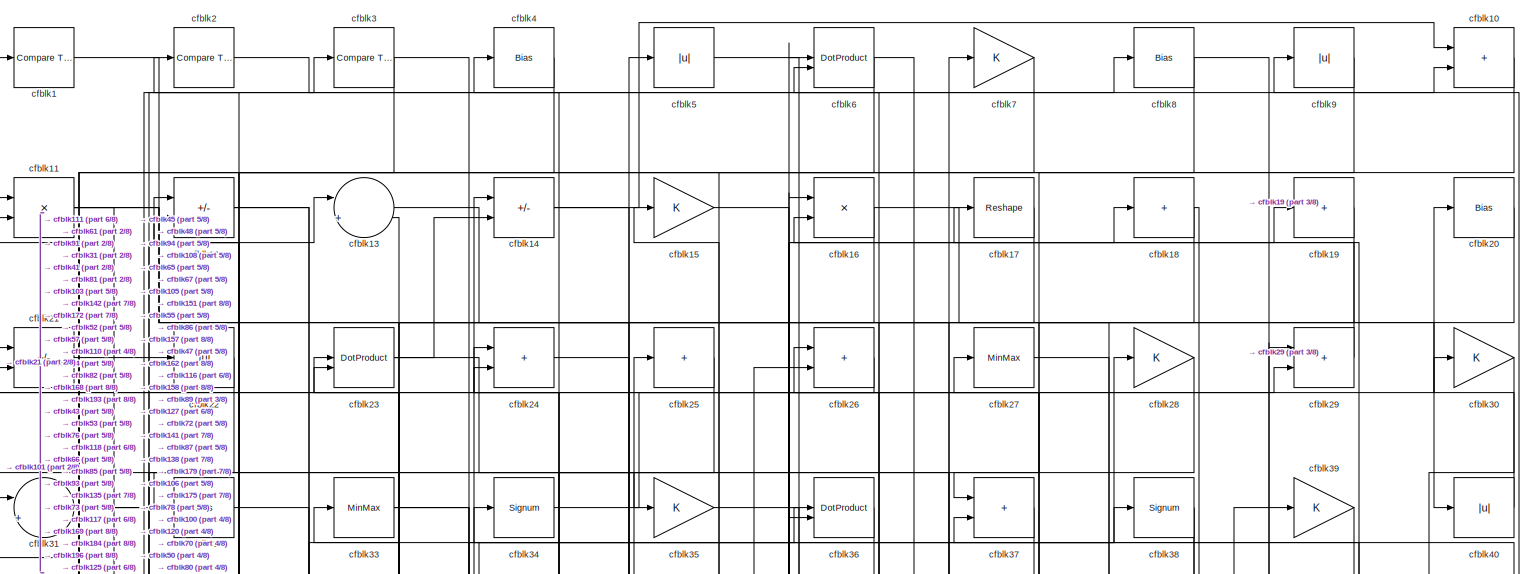
[diagram: root canvas - part 1/8, full width, top band]
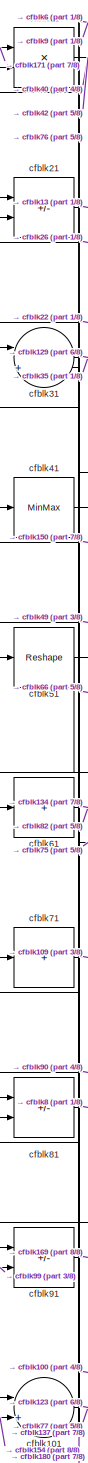
[diagram: root canvas - part 2/8, top left region]
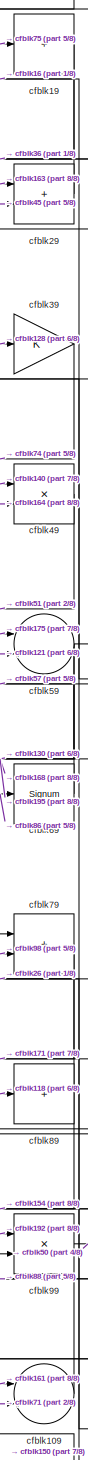
[diagram: root canvas - part 3/8, top right region]
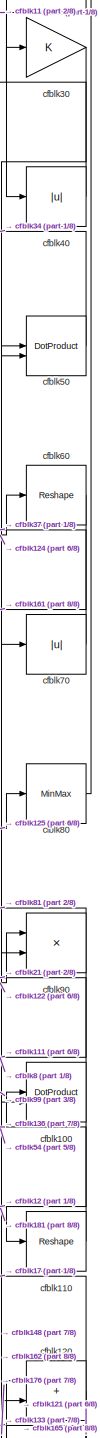
[diagram: root canvas - part 4/8, middle right region]
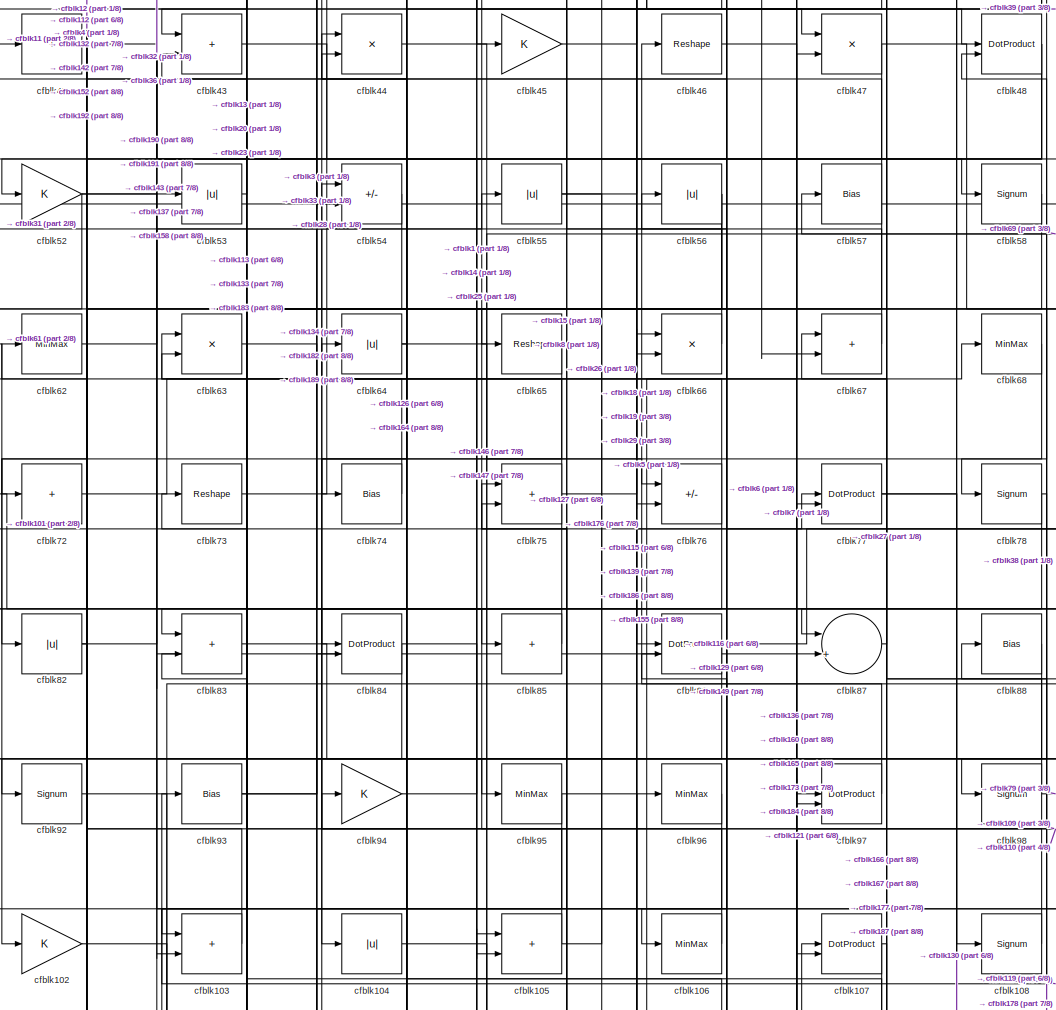
[diagram: root canvas - part 5/8, central region]
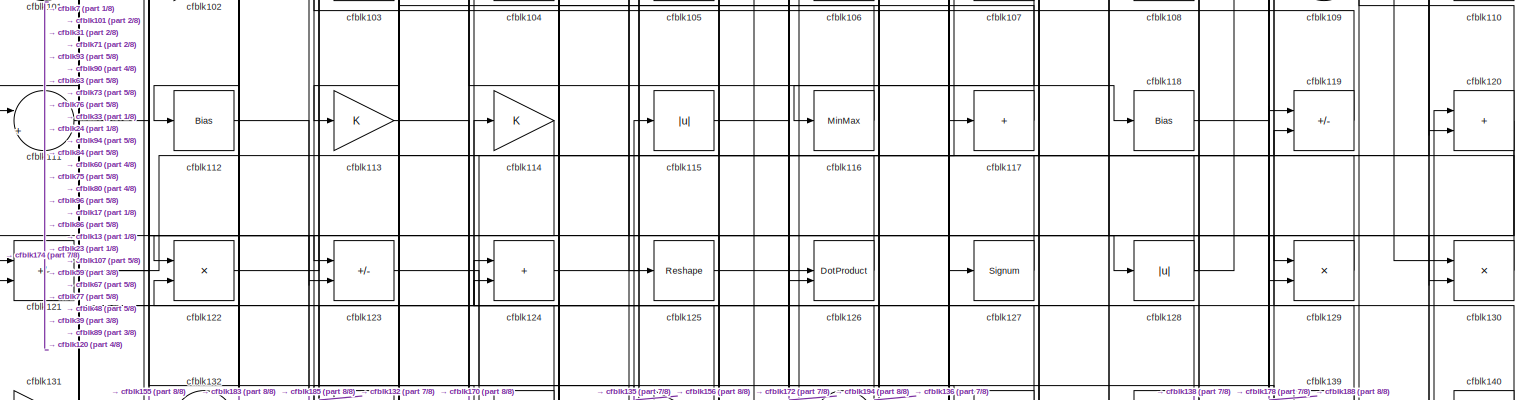
[diagram: root canvas - part 6/8, full width, middle band]
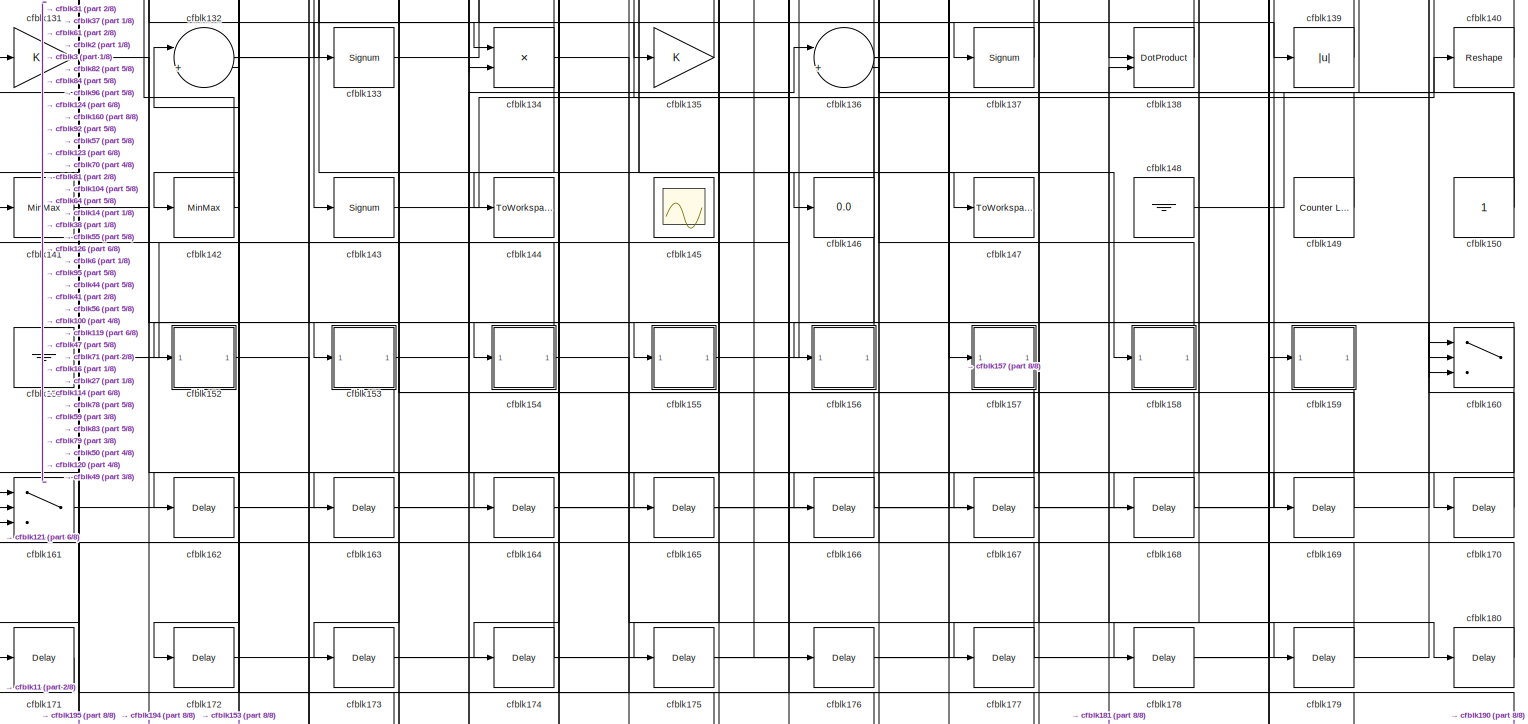
[diagram: root canvas - part 7/8, full width, bottom band]
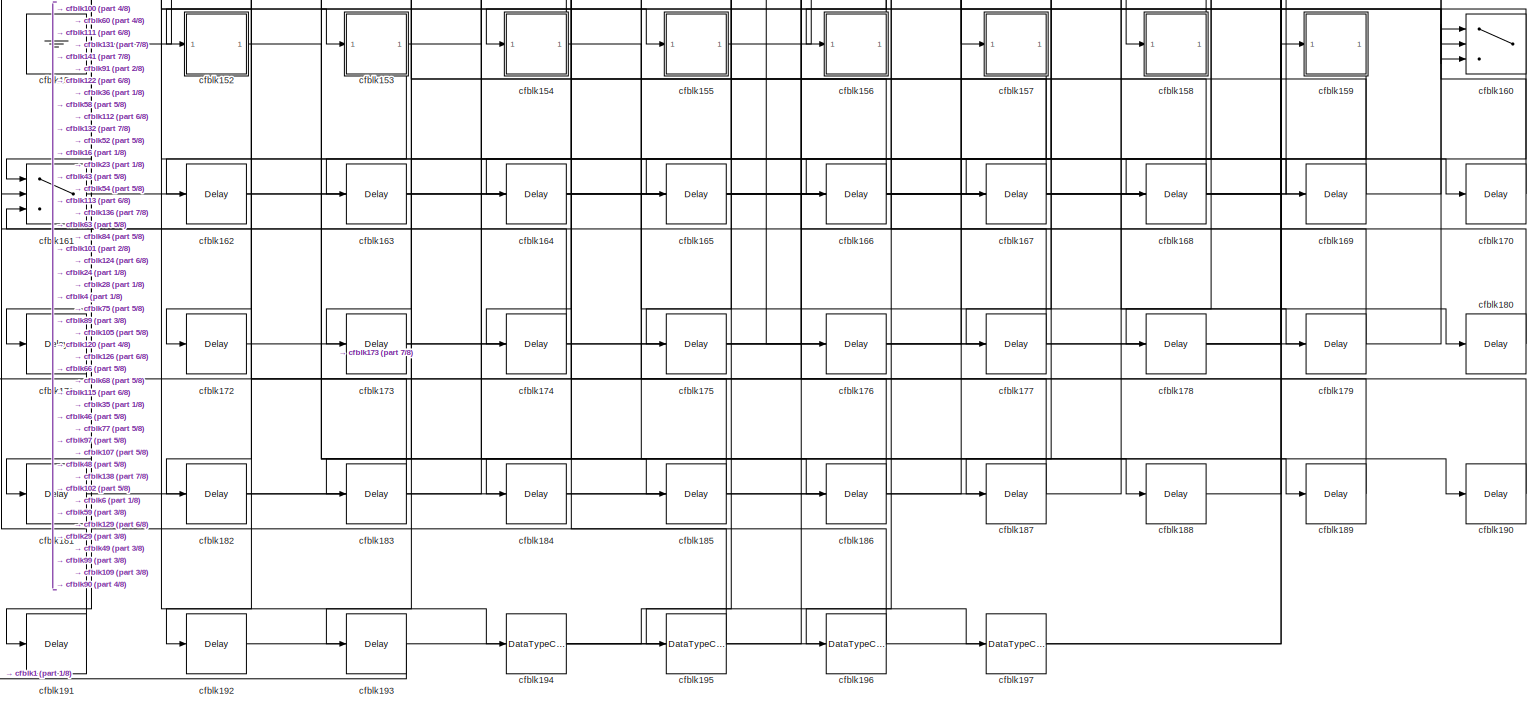
[diagram: root canvas - part 8/8, full width, bottom band]
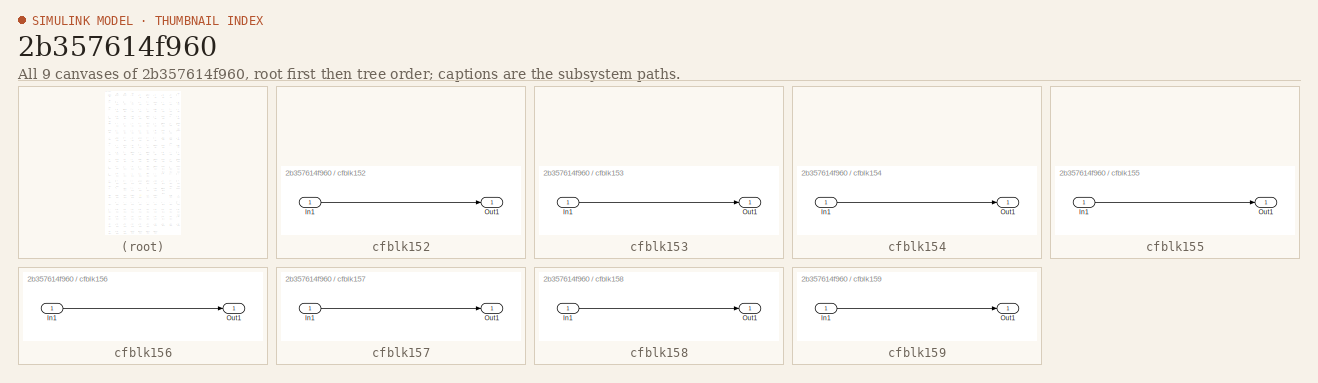
[diagram: thumbnail index - all 9 canvases of the model, root first then tree order]
MODEL slx_2b357614f960
KIND model
CONFIG AbsTol = auto
CONFIG EnableMultiTasking = off
CONFIG FixedStep = auto
CONFIG MaxStep = auto
CONFIG MinStep = auto
CONFIG RelTol = 1e-3
CONFIG SampleTimeConstraint = Unconstrained
CONFIG SolverName = VariableStepAuto
CONFIG StartTime = 0.0
CONFIG StopTime = 10.0
BLOCK [Reference] cfblk1  REF=hdlsllib/Logic and Bit
Operations/Compare
To Constant
  SourceBlock = hdlsllib/Logic and Bit\nOperations/Compare\nTo Constant
  SourceType = Compare To Constant
BLOCK [Sum] cfblk10
  IconShape = rectangular
BLOCK [DotProduct] cfblk100
  OutDataTypeStr = Inherit: Inherit via internal rule
BLOCK [Sum] cfblk101
  Inputs = |++
BLOCK [Gain] cfblk102
BLOCK [Sum] cfblk103
  IconShape = rectangular
BLOCK [Abs] cfblk104
  SaturateOnIntegerOverflow = off
BLOCK [Sum] cfblk105
  IconShape = rectangular
BLOCK [MinMax] cfblk106
BLOCK [DotProduct] cfblk107
  OutDataTypeStr = Inherit: Inherit via internal rule
BLOCK [Signum] cfblk108
BLOCK [Sum] cfblk109
  Inputs = |++
BLOCK [Product] cfblk11
  Inputs = */
  RndMeth = Zero
  SaturateOnIntegerOverflow = on
BLOCK [Reshape] cfblk110
BLOCK [Sum] cfblk111
  Inputs = |++
BLOCK [Bias] cfblk112
  Bias = 0.0
  SaturateOnIntegerOverflow = off
BLOCK [Gain] cfblk113
BLOCK [Gain] cfblk114
BLOCK [Abs] cfblk115
  SaturateOnIntegerOverflow = off
BLOCK [MinMax] cfblk116
BLOCK [Sum] cfblk117
  IconShape = rectangular
  Inputs = +
BLOCK [Bias] cfblk118
  Bias = 0.0
  SaturateOnIntegerOverflow = off
BLOCK [Sum] cfblk119
  IconShape = rectangular
  Inputs = +-
BLOCK [Sum] cfblk12
  IconShape = rectangular
  Inputs = +-
BLOCK [Sum] cfblk120
  IconShape = rectangular
BLOCK [Sum] cfblk121
  IconShape = rectangular
  Inputs = +-
BLOCK [Product] cfblk122
  Inputs = */
  RndMeth = Zero
  SaturateOnIntegerOverflow = on
BLOCK [Sum] cfblk123
  IconShape = rectangular
  Inputs = +-
BLOCK [Sum] cfblk124
  IconShape = rectangular
BLOCK [Reshape] cfblk125
BLOCK [DotProduct] cfblk126
  OutDataTypeStr = Inherit: Inherit via internal rule
BLOCK [Signum] cfblk127
BLOCK [Abs] cfblk128
  SaturateOnIntegerOverflow = off
BLOCK [Product] cfblk129
  Inputs = */
  RndMeth = Zero
  SaturateOnIntegerOverflow = on
BLOCK [Sum] cfblk13
  Inputs = |++
BLOCK [Product] cfblk130
  Inputs = */
  RndMeth = Zero
  SaturateOnIntegerOverflow = on
BLOCK [Gain] cfblk131
BLOCK [Sum] cfblk132
  Inputs = |++
BLOCK [Signum] cfblk133
BLOCK [Product] cfblk134
  Inputs = */
  RndMeth = Zero
  SaturateOnIntegerOverflow = on
BLOCK [Gain] cfblk135
BLOCK [Sum] cfblk136
  Inputs = |++
BLOCK [Signum] cfblk137
BLOCK [DotProduct] cfblk138
  OutDataTypeStr = Inherit: Inherit via internal rule
BLOCK [Abs] cfblk139
  SaturateOnIntegerOverflow = off
BLOCK [Sum] cfblk14
  IconShape = rectangular
  Inputs = +-
BLOCK [Reshape] cfblk140
BLOCK [MinMax] cfblk141
BLOCK [MinMax] cfblk142
BLOCK [Signum] cfblk143
BLOCK [ToWorkspace] cfblk144
  MaxDataPoints = inf
  SampleTime = -1
  SaveFormat = Timeseries
  VariableName = simout
BLOCK [Scope] cfblk145
  Floating = on
  NumInputPorts = 1
  ScopeSpecificationString = Simulink.scopes.TimeScopeBlockCfg('CurrentConfiguration', extmgr.ConfigurationSet(extmgr.Configuration('Core','General UI',true,'FigureColor',[0.156862745098039 0.156862745098039 0.156862745098039]),extmgr.Configuration('Core','Source UI',true),extmgr.Configuration('Sources','WiredSimulink',true,'DataLoggingVariableName','ScopeData1','DataLoggingSaveFormat','StructureWithTime','DataLoggingLimitDat...<+2713ch>
BLOCK [Display] cfblk146
  Decimation = 1
BLOCK [ToWorkspace] cfblk147
  MaxDataPoints = inf
  SampleTime = -1
  SaveFormat = Timeseries
  VariableName = simout
BLOCK [Ground] cfblk148
BLOCK [Reference] cfblk149  REF=hdlsllib/Sources/Counter
Limited
  SourceBlock = hdlsllib/Sources/Counter\nLimited
  SourceType = Counter Limited
BLOCK [Gain] cfblk15
BLOCK [Constant] cfblk150
  SampleTime = -1
BLOCK [Ground] cfblk151
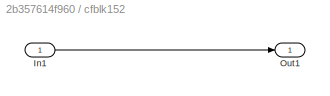
BLOCK [SubSystem] cfblk152
  LibrarySourceBlock = hdlsllib/Ports &\nSubsystems/Subsystem
BLOCK [Inport] cfblk152/In1
BLOCK [Outport] cfblk152/Out1
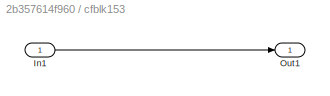
BLOCK [SubSystem] cfblk153
  LibrarySourceBlock = hdlsllib/Ports &\nSubsystems/Subsystem
BLOCK [Inport] cfblk153/In1
BLOCK [Outport] cfblk153/Out1
BLOCK [SubSystem] cfblk154
  LibrarySourceBlock = hdlsllib/Ports &\nSubsystems/Subsystem
BLOCK [Inport] cfblk154/In1
BLOCK [Outport] cfblk154/Out1
BLOCK [SubSystem] cfblk155
  LibrarySourceBlock = hdlsllib/Ports &\nSubsystems/Subsystem
BLOCK [Inport] cfblk155/In1
BLOCK [Outport] cfblk155/Out1
BLOCK [SubSystem] cfblk156
  LibrarySourceBlock = hdlsllib/Ports &\nSubsystems/Subsystem
BLOCK [Inport] cfblk156/In1
BLOCK [Outport] cfblk156/Out1
BLOCK [SubSystem] cfblk157
  LibrarySourceBlock = hdlsllib/Ports &\nSubsystems/Subsystem
BLOCK [Inport] cfblk157/In1
BLOCK [Outport] cfblk157/Out1
BLOCK [SubSystem] cfblk158
  LibrarySourceBlock = hdlsllib/Ports &\nSubsystems/Subsystem
BLOCK [Inport] cfblk158/In1
BLOCK [Outport] cfblk158/Out1
BLOCK [SubSystem] cfblk159
  LibrarySourceBlock = hdlsllib/Ports &\nSubsystems/Subsystem
BLOCK [Inport] cfblk159/In1
BLOCK [Outport] cfblk159/Out1
BLOCK [Product] cfblk16
  Inputs = */
  RndMeth = Zero
  SaturateOnIntegerOverflow = on
BLOCK [Switch] cfblk160
  InputSameDT = off
  SaturateOnIntegerOverflow = off
BLOCK [Switch] cfblk161
  InputSameDT = off
  SaturateOnIntegerOverflow = off
BLOCK [Delay] cfblk162
  InputPortMap = u0
  SampleTime = 1
BLOCK [Delay] cfblk163
  InputPortMap = u0
  SampleTime = 1
BLOCK [Delay] cfblk164
  InputPortMap = u0
  SampleTime = 1
BLOCK [Delay] cfblk165
  InputPortMap = u0
  SampleTime = 1
BLOCK [Delay] cfblk166
  InputPortMap = u0
  SampleTime = 1
BLOCK [Delay] cfblk167
  InputPortMap = u0
  SampleTime = 1
BLOCK [Delay] cfblk168
  InputPortMap = u0
  SampleTime = 1
BLOCK [Delay] cfblk169
  InputPortMap = u0
  SampleTime = 1
BLOCK [Reshape] cfblk17
BLOCK [Delay] cfblk170
  InputPortMap = u0
  SampleTime = 1
BLOCK [Delay] cfblk171
  InputPortMap = u0
  SampleTime = 1
BLOCK [Delay] cfblk172
  InputPortMap = u0
  SampleTime = 1
BLOCK [Delay] cfblk173
  InputPortMap = u0
  SampleTime = 1
BLOCK [Delay] cfblk174
  InputPortMap = u0
  SampleTime = 1
BLOCK [Delay] cfblk175
  InputPortMap = u0
  SampleTime = 1
BLOCK [Delay] cfblk176
  InputPortMap = u0
  SampleTime = 1
BLOCK [Delay] cfblk177
  InputPortMap = u0
  SampleTime = 1
BLOCK [Delay] cfblk178
  InputPortMap = u0
  SampleTime = 1
BLOCK [Delay] cfblk179
  InputPortMap = u0
  SampleTime = 1
BLOCK [Sum] cfblk18
  IconShape = rectangular
  Inputs = +
BLOCK [Delay] cfblk180
  InputPortMap = u0
  SampleTime = 1
BLOCK [Delay] cfblk181
  InputPortMap = u0
  SampleTime = 1
BLOCK [Delay] cfblk182
  InputPortMap = u0
  SampleTime = 1
BLOCK [Delay] cfblk183
  InputPortMap = u0
  SampleTime = 1
BLOCK [Delay] cfblk184
  InputPortMap = u0
  SampleTime = 1
BLOCK [Delay] cfblk185
  InputPortMap = u0
  SampleTime = 1
BLOCK [Delay] cfblk186
  InputPortMap = u0
  SampleTime = 1
BLOCK [Delay] cfblk187
  InputPortMap = u0
  SampleTime = 1
BLOCK [Delay] cfblk188
  InputPortMap = u0
  SampleTime = 1
BLOCK [Delay] cfblk189
  InputPortMap = u0
  SampleTime = 1
BLOCK [Sum] cfblk19
  IconShape = rectangular
  Inputs = +
BLOCK [Delay] cfblk190
  InputPortMap = u0
  SampleTime = 1
BLOCK [Delay] cfblk191
  InputPortMap = u0
  SampleTime = 1
BLOCK [Delay] cfblk192
  InputPortMap = u0
  SampleTime = 1
BLOCK [Delay] cfblk193
  InputPortMap = u0
  SampleTime = 1
BLOCK [DataTypeConversion] cfblk194
  RndMeth = Floor
  SaturateOnIntegerOverflow = off
BLOCK [DataTypeConversion] cfblk195
  OutDataTypeStr = uint8
  RndMeth = Floor
  SaturateOnIntegerOverflow = off
BLOCK [DataTypeConversion] cfblk196
  OutDataTypeStr = uint8
  RndMeth = Floor
  SaturateOnIntegerOverflow = off
BLOCK [DataTypeConversion] cfblk197
  OutDataTypeStr = uint8
  RndMeth = Floor
  SaturateOnIntegerOverflow = off
BLOCK [Reference] cfblk2  REF=hdlsllib/Logic and Bit
Operations/Compare
To Zero
  SourceBlock = hdlsllib/Logic and Bit\nOperations/Compare\nTo Zero
  SourceType = Compare To Zero
BLOCK [Bias] cfblk20
  Bias = 0.0
  SaturateOnIntegerOverflow = off
BLOCK [Sum] cfblk21
  IconShape = rectangular
  Inputs = +-
BLOCK [Abs] cfblk22
  SaturateOnIntegerOverflow = off
BLOCK [DotProduct] cfblk23
  OutDataTypeStr = Inherit: Inherit via internal rule
BLOCK [Sum] cfblk24
  IconShape = rectangular
BLOCK [Sum] cfblk25
  IconShape = rectangular
  Inputs = +
BLOCK [Sum] cfblk26
  IconShape = rectangular
BLOCK [MinMax] cfblk27
BLOCK [Gain] cfblk28
BLOCK [Sum] cfblk29
  IconShape = rectangular
BLOCK [Reference] cfblk3  REF=hdlsllib/Logic and Bit
Operations/Compare
To Zero
  SourceBlock = hdlsllib/Logic and Bit\nOperations/Compare\nTo Zero
  SourceType = Compare To Zero
BLOCK [Gain] cfblk30
BLOCK [Sum] cfblk31
  Inputs = |++
BLOCK [Bias] cfblk32
  Bias = 0.0
  SaturateOnIntegerOverflow = off
BLOCK [MinMax] cfblk33
BLOCK [Signum] cfblk34
BLOCK [Gain] cfblk35
BLOCK [DotProduct] cfblk36
  OutDataTypeStr = Inherit: Inherit via internal rule
BLOCK [Sum] cfblk37
  IconShape = rectangular
BLOCK [Signum] cfblk38
BLOCK [Gain] cfblk39
BLOCK [Bias] cfblk4
  Bias = 0.0
  SaturateOnIntegerOverflow = off
BLOCK [Abs] cfblk40
  SaturateOnIntegerOverflow = off
BLOCK [MinMax] cfblk41
BLOCK [Sum] cfblk42
  IconShape = rectangular
  Inputs = +
BLOCK [Sum] cfblk43
  IconShape = rectangular
BLOCK [Product] cfblk44
  Inputs = */
  RndMeth = Zero
  SaturateOnIntegerOverflow = on
BLOCK [Gain] cfblk45
BLOCK [Reshape] cfblk46
BLOCK [Product] cfblk47
  Inputs = */
  RndMeth = Zero
  SaturateOnIntegerOverflow = on
BLOCK [DotProduct] cfblk48
  OutDataTypeStr = Inherit: Inherit via internal rule
BLOCK [Product] cfblk49
  Inputs = */
  RndMeth = Zero
  SaturateOnIntegerOverflow = on
BLOCK [Abs] cfblk5
  SaturateOnIntegerOverflow = off
BLOCK [DotProduct] cfblk50
  OutDataTypeStr = Inherit: Inherit via internal rule
BLOCK [Reshape] cfblk51
BLOCK [Gain] cfblk52
BLOCK [Abs] cfblk53
  SaturateOnIntegerOverflow = off
BLOCK [Sum] cfblk54
  IconShape = rectangular
  Inputs = +-
BLOCK [Abs] cfblk55
  SaturateOnIntegerOverflow = off
BLOCK [Abs] cfblk56
  SaturateOnIntegerOverflow = off
BLOCK [Bias] cfblk57
  Bias = 0.0
  SaturateOnIntegerOverflow = off
BLOCK [Signum] cfblk58
BLOCK [Sum] cfblk59
  Inputs = |++
BLOCK [DotProduct] cfblk6
  OutDataTypeStr = Inherit: Inherit via internal rule
BLOCK [Reshape] cfblk60
BLOCK [Sum] cfblk61
  IconShape = rectangular
  Inputs = +
BLOCK [MinMax] cfblk62
BLOCK [Product] cfblk63
  Inputs = */
  RndMeth = Zero
  SaturateOnIntegerOverflow = on
BLOCK [Abs] cfblk64
  SaturateOnIntegerOverflow = off
BLOCK [Reshape] cfblk65
BLOCK [Product] cfblk66
  Inputs = */
  RndMeth = Zero
  SaturateOnIntegerOverflow = on
BLOCK [Sum] cfblk67
  IconShape = rectangular
BLOCK [MinMax] cfblk68
BLOCK [Signum] cfblk69
BLOCK [Gain] cfblk7
BLOCK [Abs] cfblk70
  SaturateOnIntegerOverflow = off
BLOCK [Sum] cfblk71
  IconShape = rectangular
  Inputs = +
BLOCK [Sum] cfblk72
  IconShape = rectangular
  Inputs = +
BLOCK [Reshape] cfblk73
BLOCK [Bias] cfblk74
  Bias = 0.0
  SaturateOnIntegerOverflow = off
BLOCK [Sum] cfblk75
  IconShape = rectangular
BLOCK [Sum] cfblk76
  IconShape = rectangular
  Inputs = +-
BLOCK [DotProduct] cfblk77
  OutDataTypeStr = Inherit: Inherit via internal rule
BLOCK [Signum] cfblk78
BLOCK [Sum] cfblk79
  IconShape = rectangular
BLOCK [Bias] cfblk8
  Bias = 0.0
  SaturateOnIntegerOverflow = off
BLOCK [MinMax] cfblk80
BLOCK [Sum] cfblk81
  IconShape = rectangular
  Inputs = +-
BLOCK [Abs] cfblk82
  SaturateOnIntegerOverflow = off
BLOCK [Sum] cfblk83
  IconShape = rectangular
BLOCK [DotProduct] cfblk84
  OutDataTypeStr = Inherit: Inherit via internal rule
BLOCK [Sum] cfblk85
  IconShape = rectangular
  Inputs = +
BLOCK [DotProduct] cfblk86
  OutDataTypeStr = Inherit: Inherit via internal rule
BLOCK [Sum] cfblk87
  Inputs = |++
BLOCK [Bias] cfblk88
  Bias = 0.0
  SaturateOnIntegerOverflow = off
BLOCK [Sum] cfblk89
  IconShape = rectangular
  Inputs = +
BLOCK [Abs] cfblk9
  SaturateOnIntegerOverflow = off
BLOCK [Product] cfblk90
  Inputs = */
  RndMeth = Zero
  SaturateOnIntegerOverflow = on
BLOCK [Sum] cfblk91
  IconShape = rectangular
  Inputs = +-
BLOCK [Signum] cfblk92
BLOCK [Bias] cfblk93
  Bias = 0.0
  SaturateOnIntegerOverflow = off
BLOCK [Gain] cfblk94
BLOCK [MinMax] cfblk95
BLOCK [MinMax] cfblk96
BLOCK [DotProduct] cfblk97
  OutDataTypeStr = Inherit: Inherit via internal rule
BLOCK [Signum] cfblk98
BLOCK [Product] cfblk99
  Inputs = */
  RndMeth = Zero
  SaturateOnIntegerOverflow = on
NET cfblk100:1 -> cfblk181:1, cfblk21:1
NET cfblk101:1 -> cfblk123:1, cfblk77:1
LINE cfblk102:1 -> cfblk158:1
LINE cfblk103:1 -> cfblk12:1
LINE cfblk104:1 -> cfblk146:1
NET cfblk105:1 -> cfblk23:1, cfblk26:2
LINE cfblk106:1 -> cfblk62:1
NET cfblk107:1 -> cfblk166:1, cfblk167:1
LINE cfblk108:1 -> cfblk25:1
LINE cfblk109:1 -> cfblk88:1
LINE cfblk10:1 -> cfblk37:1
LINE cfblk110:1 -> cfblk54:1
LINE cfblk111:1 -> cfblk155:1
LINE cfblk112:1 -> cfblk185:1
LINE cfblk113:1 -> cfblk170:1
LINE cfblk114:1 -> cfblk122:1
LINE cfblk115:1 -> cfblk96:1
LINE cfblk116:1 -> cfblk63:2
LINE cfblk117:1 -> cfblk24:1
LINE cfblk118:1 -> cfblk89:1
LINE cfblk119:1 -> cfblk93:1
NET cfblk11:1 -> cfblk40:1, cfblk42:1, cfblk76:2
NET cfblk120:1 -> cfblk121:2, cfblk165:1, cfblk17:1
NET cfblk121:1 -> cfblk107:1, cfblk59:2
LINE cfblk122:1 -> cfblk90:1
LINE cfblk123:1 -> cfblk135:1
LINE cfblk124:1 -> cfblk60:1
LINE cfblk125:1 -> cfblk80:1
LINE cfblk126:1 -> cfblk94:1
LINE cfblk127:1 -> cfblk75:1
NET cfblk128:1 -> cfblk39:1, cfblk48:2, cfblk67:1
LINE cfblk129:1 -> cfblk86:2
NET cfblk12:1 -> cfblk110:1, cfblk53:1
LINE cfblk130:1 -> cfblk73:1
LINE cfblk131:1 -> cfblk194:1
NET cfblk132:1 -> cfblk124:1, cfblk160:3
LINE cfblk133:1 -> cfblk70:1
NET cfblk134:1 -> cfblk144:1, cfblk180:1, cfblk81:2
LINE cfblk135:1 -> cfblk14:1
NET cfblk136:1 -> cfblk100:1, cfblk119:2, cfblk174:1, cfblk44:2
LINE cfblk137:1 -> cfblk71:1
LINE cfblk138:1 -> cfblk114:1
LINE cfblk139:1 -> cfblk83:2
LINE cfblk13:1 -> cfblk117:1
LINE cfblk140:1 -> cfblk49:1
LINE cfblk141:1 -> cfblk153:1
NET cfblk142:1 -> cfblk2:1, cfblk3:1
LINE cfblk143:1 -> cfblk140:1
LINE cfblk148:1 -> cfblk120:1
LINE cfblk149:1 -> cfblk56:1
NET cfblk14:1 -> cfblk10:1, cfblk48:1
NET cfblk150:1 -> cfblk41:1, cfblk79:1
LINE cfblk151:1 -> cfblk16:1
LINE cfblk152/In1:1 -> cfblk152/Out1:1
LINE cfblk152:1 -> cfblk186:1
LINE cfblk153/In1:1 -> cfblk153/Out1:1
NET cfblk153:1 -> cfblk136:1, cfblk182:1
LINE cfblk154/In1:1 -> cfblk154/Out1:1
NET cfblk154:1 -> cfblk101:2, cfblk188:1
LINE cfblk155/In1:1 -> cfblk155/Out1:1
LINE cfblk155:1 -> cfblk68:1
LINE cfblk156/In1:1 -> cfblk156/Out1:1
LINE cfblk156:1 -> cfblk115:1
LINE cfblk157/In1:1 -> cfblk157/Out1:1
LINE cfblk157:1 -> cfblk173:1
LINE cfblk158/In1:1 -> cfblk158/Out1:1
LINE cfblk158:1 -> cfblk6:2
LINE cfblk159/In1:1 -> cfblk159/Out1:1
LINE cfblk159:1 -> cfblk196:1
LINE cfblk15:1 -> cfblk86:1
NET cfblk160:1 -> cfblk156:1, cfblk163:1
LINE cfblk161:1 -> cfblk109:1
LINE cfblk162:1 -> cfblk90:2
LINE cfblk163:1 -> cfblk29:1
LINE cfblk164:1 -> cfblk49:2
LINE cfblk165:1 -> cfblk97:1
LINE cfblk166:1 -> cfblk43:2
LINE cfblk167:1 -> cfblk75:2
LINE cfblk168:1 -> cfblk23:2
LINE cfblk169:1 -> cfblk24:2
NET cfblk16:1 -> cfblk138:1, cfblk193:1
LINE cfblk170:1 -> cfblk160:1
LINE cfblk171:1 -> cfblk11:1
LINE cfblk172:1 -> cfblk126:2
LINE cfblk173:1 -> cfblk47:2
LINE cfblk174:1 -> cfblk121:1
LINE cfblk175:1 -> cfblk59:1
LINE cfblk176:1 -> cfblk50:1
LINE cfblk177:1 -> cfblk136:2
LINE cfblk178:1 -> cfblk119:1
LINE cfblk179:1 -> cfblk6:1
LINE cfblk17:1 -> cfblk116:1
LINE cfblk180:1 -> cfblk31:1
LINE cfblk181:1 -> cfblk138:2
LINE cfblk182:1 -> cfblk84:2
LINE cfblk183:1 -> cfblk122:2
LINE cfblk184:1 -> cfblk77:2
LINE cfblk185:1 -> cfblk124:2
LINE cfblk186:1 -> cfblk66:1
LINE cfblk187:1 -> cfblk161:3
LINE cfblk188:1 -> cfblk129:2
LINE cfblk189:1 -> cfblk105:1
NET cfblk18:1 -> cfblk78:1, cfblk87:1
LINE cfblk190:1 -> cfblk132:1
LINE cfblk191:1 -> cfblk161:2
LINE cfblk192:1 -> cfblk99:1
LINE cfblk193:1 -> cfblk1:1
NET cfblk194:1 -> cfblk126:1, cfblk197:1
LINE cfblk195:1 -> cfblk131:1
LINE cfblk196:1 -> cfblk4:1
LINE cfblk197:1 -> cfblk159:1
LINE cfblk19:1 -> cfblk36:2
LINE cfblk1:1 -> cfblk45:1
LINE cfblk20:1 -> cfblk43:1
LINE cfblk21:1 -> cfblk13:1
LINE cfblk22:1 -> cfblk101:1
NET cfblk23:1 -> cfblk127:1, cfblk14:2
LINE cfblk24:1 -> cfblk125:1
LINE cfblk25:1 -> cfblk32:1
LINE cfblk26:1 -> cfblk21:2
LINE cfblk27:1 -> cfblk179:1
LINE cfblk28:1 -> cfblk184:1
LINE cfblk29:1 -> cfblk16:2
LINE cfblk2:1 -> cfblk10:2
LINE cfblk30:1 -> cfblk120:2
NET cfblk31:1 -> cfblk129:1, cfblk35:1
LINE cfblk32:1 -> cfblk54:2
NET cfblk33:1 -> cfblk118:1, cfblk85:1
LINE cfblk34:1 -> cfblk20:1
LINE cfblk35:1 -> cfblk157:1
LINE cfblk36:1 -> cfblk162:1
LINE cfblk37:1 -> cfblk141:1
NET cfblk38:1 -> cfblk106:1, cfblk175:1
LINE cfblk39:1 -> cfblk74:1
NET cfblk3:1 -> cfblk172:1, cfblk66:2
LINE cfblk40:1 -> cfblk30:1
LINE cfblk41:1 -> cfblk22:1
LINE cfblk42:1 -> cfblk58:1
LINE cfblk43:1 -> cfblk105:2
LINE cfblk44:1 -> cfblk76:1
LINE cfblk45:1 -> cfblk29:2
LINE cfblk46:1 -> cfblk160:2
NET cfblk47:1 -> cfblk84:1, cfblk98:1
NET cfblk48:1 -> cfblk112:1, cfblk152:1, cfblk187:1
LINE cfblk49:1 -> cfblk51:1
LINE cfblk4:1 -> cfblk52:1
LINE cfblk50:1 -> cfblk34:1
NET cfblk51:1 -> cfblk91:2, cfblk99:2
NET cfblk52:1 -> cfblk190:1, cfblk191:1, cfblk87:2
LINE cfblk53:1 -> cfblk33:1
LINE cfblk54:1 -> cfblk183:1
NET cfblk55:1 -> cfblk176:1, cfblk18:1
NET cfblk56:1 -> cfblk103:1, cfblk72:1, cfblk92:1
NET cfblk57:1 -> cfblk12:2, cfblk133:1
LINE cfblk58:1 -> cfblk192:1
NET cfblk59:1 -> cfblk130:1, cfblk168:1, cfblk195:1
LINE cfblk5:1 -> cfblk47:1
LINE cfblk60:1 -> cfblk161:1
NET cfblk61:1 -> cfblk134:1, cfblk82:1
LINE cfblk62:1 -> cfblk55:1
LINE cfblk63:1 -> cfblk189:1
NET cfblk64:1 -> cfblk147:1, cfblk44:1
LINE cfblk65:1 -> cfblk104:1
LINE cfblk66:1 -> cfblk31:2
LINE cfblk67:1 -> cfblk15:1
LINE cfblk68:1 -> cfblk102:1
LINE cfblk69:1 -> cfblk57:1
NET cfblk6:1 -> cfblk61:1, cfblk67:2
LINE cfblk70:1 -> cfblk37:2
NET cfblk71:1 -> cfblk109:2, cfblk123:2
LINE cfblk72:1 -> cfblk7:1
LINE cfblk73:1 -> cfblk28:1
LINE cfblk74:1 -> cfblk63:1
NET cfblk75:1 -> cfblk11:2, cfblk164:1, cfblk19:1
NET cfblk76:1 -> cfblk113:1, cfblk13:2
NET cfblk77:1 -> cfblk108:1, cfblk130:2
NET cfblk78:1 -> cfblk177:1, cfblk178:1
LINE cfblk79:1 -> cfblk171:1
LINE cfblk7:1 -> cfblk111:1
LINE cfblk80:1 -> cfblk9:1
LINE cfblk81:1 -> cfblk8:1
NET cfblk82:1 -> cfblk132:2, cfblk36:1
LINE cfblk83:1 -> cfblk107:2
NET cfblk84:1 -> cfblk128:1, cfblk142:1
LINE cfblk85:1 -> cfblk83:1
NET cfblk86:1 -> cfblk103:2, cfblk69:1
LINE cfblk87:1 -> cfblk27:1
LINE cfblk88:1 -> cfblk97:2
NET cfblk89:1 -> cfblk154:1, cfblk26:1
NET cfblk8:1 -> cfblk100:2, cfblk65:1
NET cfblk90:1 -> cfblk111:2, cfblk81:1
LINE cfblk91:1 -> cfblk169:1
LINE cfblk92:1 -> cfblk137:1
NET cfblk93:1 -> cfblk38:1, cfblk95:1
LINE cfblk94:1 -> cfblk5:1
NET cfblk95:1 -> cfblk134:2, cfblk139:1
LINE cfblk96:1 -> cfblk143:1
LINE cfblk97:1 -> cfblk46:1
NET cfblk98:1 -> cfblk64:1, cfblk79:2
LINE cfblk99:1 -> cfblk50:2
LINE cfblk9:1 -> cfblk91:1
note: NET lines group one-source signal fan-out (src -> all destinations, sorted); 1:1 wires keep LINE
